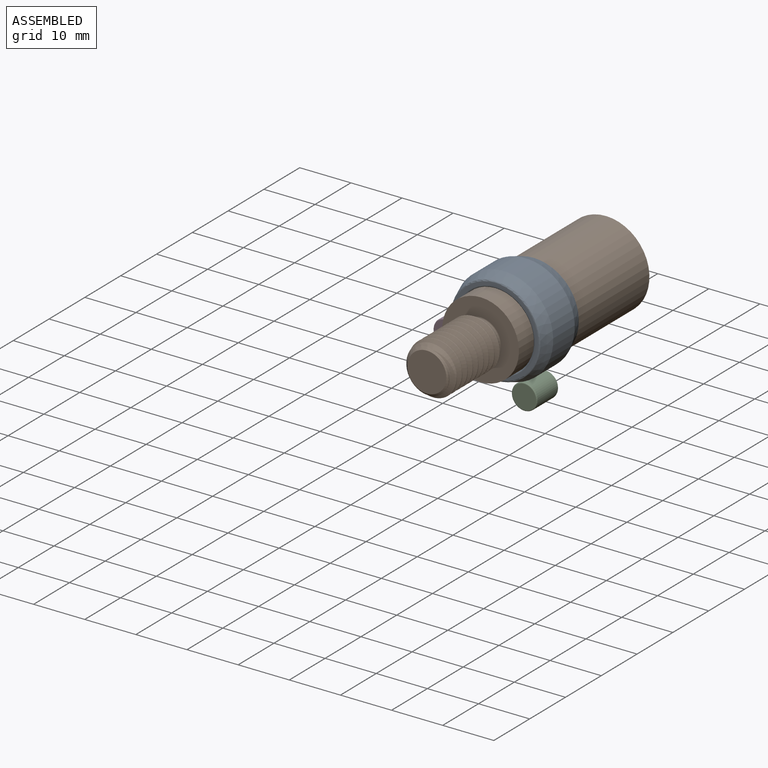
[diagram: assembled view]
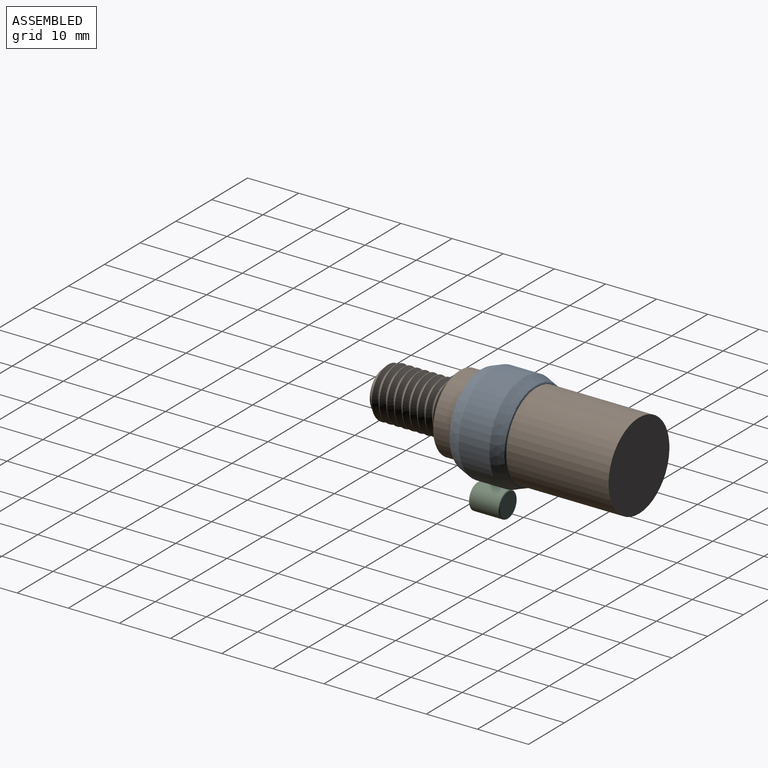
[diagram: assembled view, second angle]
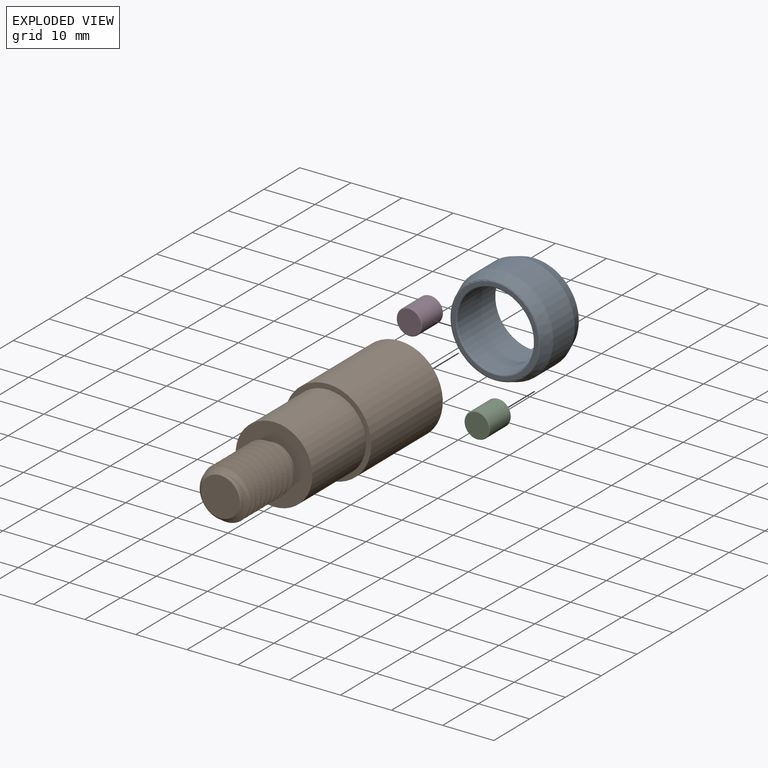
[diagram: exploded view]
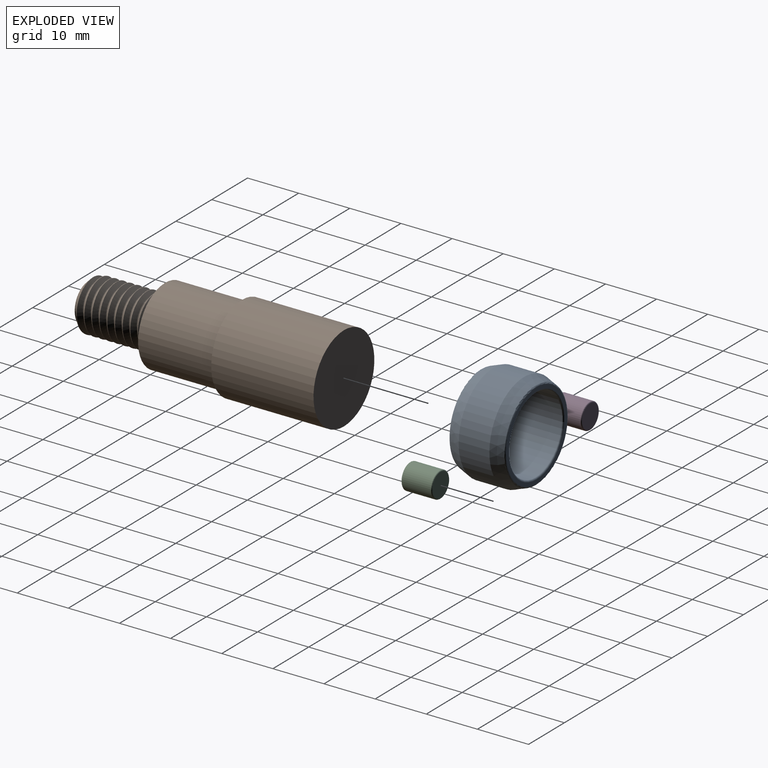
[diagram: exploded view, second angle]
ASSEMBLY  parts=4 mates=3
PART A: 10 faces, bbox 11x19.3x19.3 mm
  f0: cone r=9.65mm half-angle=20deg, axis (1,0,0), area 142.1mm2, adj f5,f6
  f1: plane 17.06x17.06mm, normal (-1,0,0), area 37.5mm2, adj f6,f7
  f2: cylinder r=7.5mm len=15mm, axis (-1,0,0), area 490.1mm2, adj f7,f8
  f3: plane 17.06x17.06mm, normal (1,0,0), area 37.5mm2, adj f8,f9
  f4: cone r=8.74mm half-angle=20deg, axis (-1,0,0), area 142.1mm2, adj f5,f9
  f5: cylinder r=9.65mm len=19.3mm, axis (-1,0,0), area 363.8mm2, adj f0,f4
  f6: torus R=8.53mm, axis (1,0,0), area 20mm2, adj f0,f1
  f7: torus R=7.8mm, axis (1,0,0), area 22.5mm2, adj f1,f2
  f8: torus R=7.8mm, axis (-1,0,0), area 22.5mm2, adj f2,f3
  f9: torus R=8.53mm, axis (-1,0,0), area 20mm2, adj f3,f4
PART B: 16 faces, bbox 50.4x17x17 mm
  f0: plane 15x15mm, normal (1,0,0), area 126.4mm2, adj f1,f8
  f1: cylinder r=7.5mm len=15mm, axis (-1,0,0), area 706.9mm2, adj f0,f2
  f2: plane 17x17mm, normal (1,0,0), area 50.3mm2, adj f1,f3
  f3: cylinder r=8.5mm len=20mm, axis (-1,0,0), area 1068.1mm2, adj f2,f4
  f4: plane 17x17mm, normal (-1,0,0), area 227mm2, adj f3
  f5: cylinder r=3.75mm len=7.5mm, axis (1,0,0), area 14.3mm2, adj f6,f8
  f6: torus R=4mm, axis (1,0,0), area 6.2mm2, adj f5,f7
  f7: cone r=3.88mm half-angle=60deg, axis (1,0,0), area 18.8mm2, adj f6,f10,f13,f14,f15
  f8: torus R=4mm, axis (1,0,0), area 9.5mm2, adj f0,f5
  f9: plane 7.6x7.6mm, normal (1,0,0), area 45.4mm2, adj f12
  f10: cylinder r=5mm len=12.08mm, axis (-1,0,0), area -4.3mm2, adj f7,f11,f13,f15
  f11: cone r=5mm half-angle=45deg, axis (-1,0,0), area 4.1mm2, adj f10,f12,f13,f15
  f12: cone r=5mm half-angle=45deg, axis (-1,0,0), area 21.1mm2, adj f9,f11,f13,f14
  f13: bspline ~14.27x11.55mm, area 253.9mm2, adj f7,f10,f11,f12,f14
  f14: bspline ~14.35x9.47mm, area 95.6mm2, adj f7,f12,f13,f15
  f15: bspline ~14.02x9.99mm, area 254.5mm2, adj f7,f10,f11,f14
PART C: 5 faces, bbox 6x5.4x5.4 mm
  f0: plane 4.6x4.6mm, normal (-1,0,0), area 16.6mm2, adj f4
  f1: plane 4.6x4.6mm, normal (1,0,0), area 16.6mm2, adj f3
  f2: cylinder r=2.5mm len=5.6mm, axis (-1,0,0), area 88mm2, adj f3,f4
  f3: torus R=2.3mm, axis (1,0,0), area 4.8mm2, adj f1,f2
  f4: torus R=2.3mm, axis (-1,0,0), area 4.8mm2, adj f0,f2
PART D: same geometry as C
PLACE A rot(axis=(0.71,-0.71,0),180deg) t=(-10.61,-13.35,4.08)mm fixed
PLACE B rot(axis=(0.14,-0.14,-0.98),91.2deg) t=(-10.61,-13.35,4.08)mm
PLACE C rot(axis=(0.19,0.19,0.96),92.2deg) t=(-11.17,-13.55,-18.57)mm
PLACE D rot(axis=(0.34,-0.34,-0.87),97.7deg) t=(-13.69,-13.35,-9.19)mm
MATE planar D.f2 <-> A.f0  axis (0,-1,0) through (-21.95,-16.35,-0.28)mm
MATE planar C.f2 <-> A.f0  axis (0,-1,0) through (-6.5,-16.35,-7.35)mm
MATE revolute B.f1 <-> A.f0  axis (0,-1,0) through (-10.61,-7.85,4.08)mm
